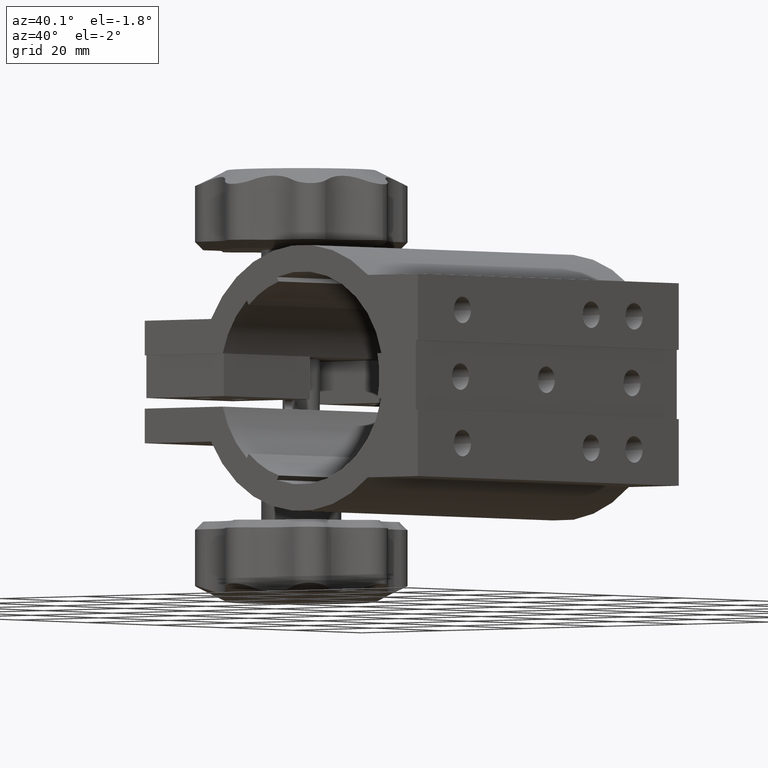
[diagram: clean part render]
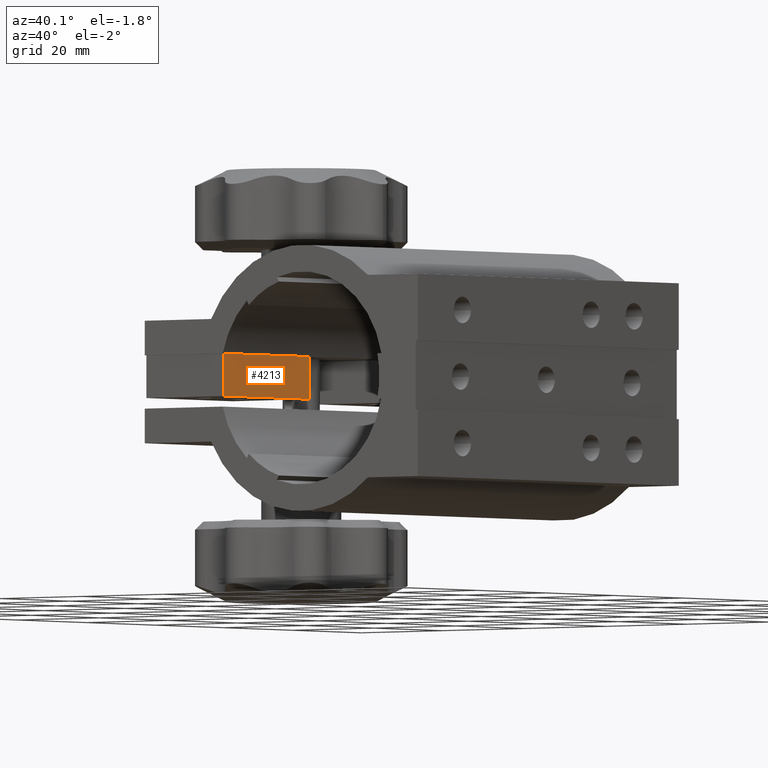
[diagram: same view with one face highlighted and labeled with its STEP entity id]
A machine part, auxiliary view. The second image highlights one B-rep face of the part: STEP entity #4213.
In plain terms, the highlighted planar face has unit normal (-1, 0, 0).
Its self-contained STEP definition (entity closure, byte-faithful):
#70 = ORIENTED_EDGE ( 'NONE', *, *, #1351, .F. ) ;
#121 = EDGE_CURVE ( 'NONE', #8364, #10580, #1808, .T. ) ;
#360 = CARTESIAN_POINT ( 'NONE',  ( -19.49999999999974400, -50.50000000000012800, -2.999999999999998200 ) ) ;
#384 = CARTESIAN_POINT ( 'NONE',  ( -19.49999999999966200, -75.50000000000019900, -2.999999999999995600 ) ) ;
#770 = DIRECTION ( 'NONE',  ( 7.642493025342689500E-017, 9.799131557042277000E-031, 1.000000000000000000 ) ) ;
#1351 = EDGE_CURVE ( 'NONE', #2962, #8364, #7877, .T. ) ;
#1808 = LINE ( 'NONE', #7587, #8575 ) ;
#2665 = PLANE ( 'NONE',  #2802 ) ;
#2802 = AXIS2_PLACEMENT_3D ( 'NONE', #10408, #5337, #6204 ) ;
#2962 = VERTEX_POINT ( 'NONE', #10342 ) ;
#3666 = FACE_OUTER_BOUND ( 'NONE', #7849, .T. ) ;
#4213 = ADVANCED_FACE ( 'NONE', ( #3666 ), #2665, .F. ) ;
#4785 = ORIENTED_EDGE ( 'NONE', *, *, #121, .F. ) ;
#4842 = LINE ( 'NONE', #5457, #5628 ) ;
#5033 = EDGE_CURVE ( 'NONE', #7195, #10580, #4842, .T. ) ;
#5337 = DIRECTION ( 'NONE',  ( -1.000000000000000000, 2.997602166487928600E-015, 7.642493025342689500E-017 ) ) ;
#5457 = CARTESIAN_POINT ( 'NONE',  ( -19.49999999999974400, -50.50000000000012800, -2.999999999999998200 ) ) ;
#5628 = VECTOR ( 'NONE', #10490, 1000.000000000000000 ) ;
#5637 = ORIENTED_EDGE ( 'NONE', *, *, #5033, .T. ) ;
#5870 = VECTOR ( 'NONE', #8665, 1000.000000000000000 ) ;
#6204 = DIRECTION ( 'NONE',  ( -7.642493025342689500E-017, -9.799131557042277000E-031, -1.000000000000000000 ) ) ;
#6561 = CARTESIAN_POINT ( 'NONE',  ( -19.49999999999966200, -75.50000000000019900, -2.999999999999995600 ) ) ;
#6816 = EDGE_CURVE ( 'NONE', #2962, #7195, #8072, .T. ) ;
#7195 = VERTEX_POINT ( 'NONE', #360 ) ;
#7429 = CARTESIAN_POINT ( 'NONE',  ( -19.49999999999966200, -75.50000000000021300, 4.999999999999997300 ) ) ;
#7587 = CARTESIAN_POINT ( 'NONE',  ( -19.49999999999966200, -75.50000000000021300, 4.999999999999997300 ) ) ;
#7849 = EDGE_LOOP ( 'NONE', ( #5637, #4785, #70, #9737 ) ) ;
#7877 = LINE ( 'NONE', #6561, #8003 ) ;
#8003 = VECTOR ( 'NONE', #770, 1000.000000000000000 ) ;
#8072 = LINE ( 'NONE', #384, #5870 ) ;
#8364 = VERTEX_POINT ( 'NONE', #7429 ) ;
#8575 = VECTOR ( 'NONE', #9182, 1000.000000000000000 ) ;
#8665 = DIRECTION ( 'NONE',  ( -2.831068712794146000E-015, 1.000000000000000000, 1.204904927514881500E-030 ) ) ;
#9095 = CARTESIAN_POINT ( 'NONE',  ( -19.49999999999974400, -50.50000000000011400, 4.999999999999997300 ) ) ;
#9182 = DIRECTION ( 'NONE',  ( -2.831068712794146000E-015, 1.000000000000000000, 1.204904927514881500E-030 ) ) ;
#9737 = ORIENTED_EDGE ( 'NONE', *, *, #6816, .T. ) ;
#10342 = CARTESIAN_POINT ( 'NONE',  ( -19.49999999999966200, -75.50000000000019900, -2.999999999999995600 ) ) ;
#10408 = CARTESIAN_POINT ( 'NONE',  ( -19.49999999999966200, -75.50000000000019900, -2.999999999999995600 ) ) ;
#10490 = DIRECTION ( 'NONE',  ( 7.642493025342689500E-017, 9.799131557042277000E-031, 1.000000000000000000 ) ) ;
#10580 = VERTEX_POINT ( 'NONE', #9095 ) ;